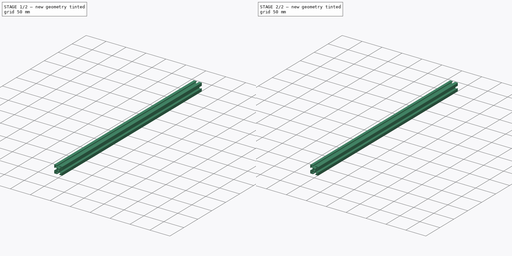
[diagram: build sequence overview — one tinted view per stage of 2, left to right]
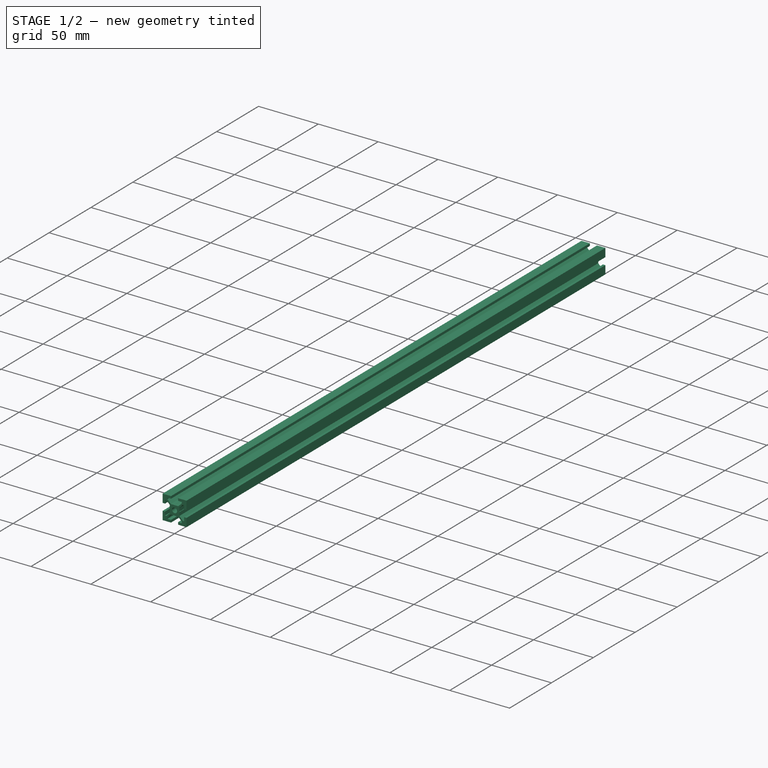
[diagram: stage 1 of 2 — iso view after this stage's code; geometry added in this stage tinted green]
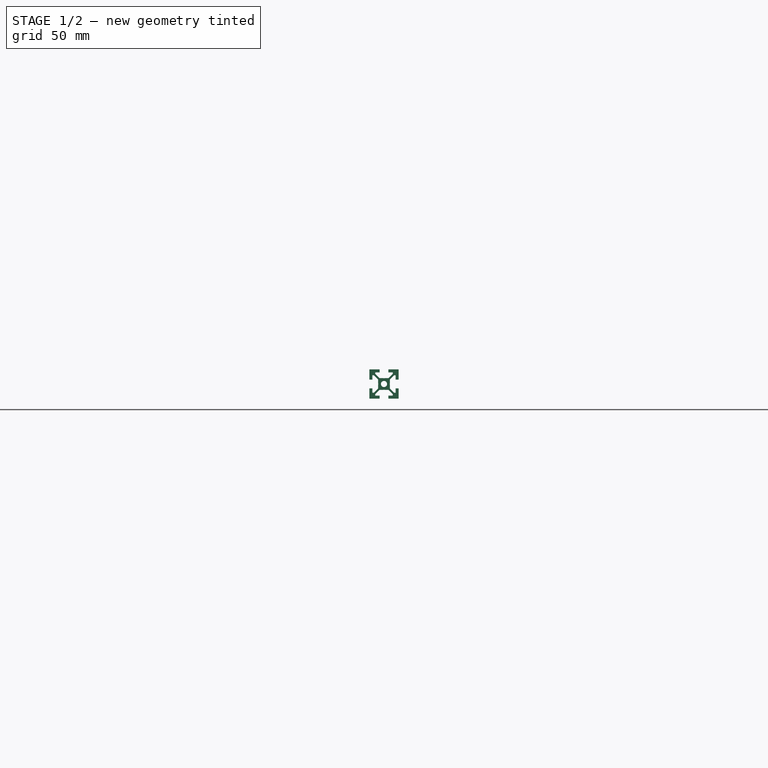
[diagram: stage 1 of 2 — front view after this stage's code; geometry added in this stage tinted green]
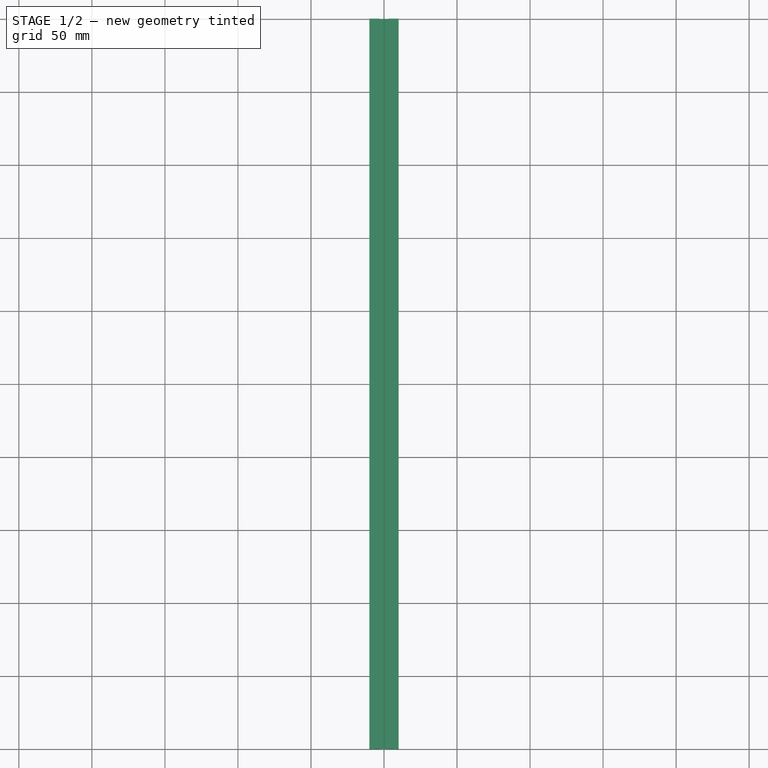
[diagram: stage 1 of 2 — top view after this stage's code; geometry added in this stage tinted green]
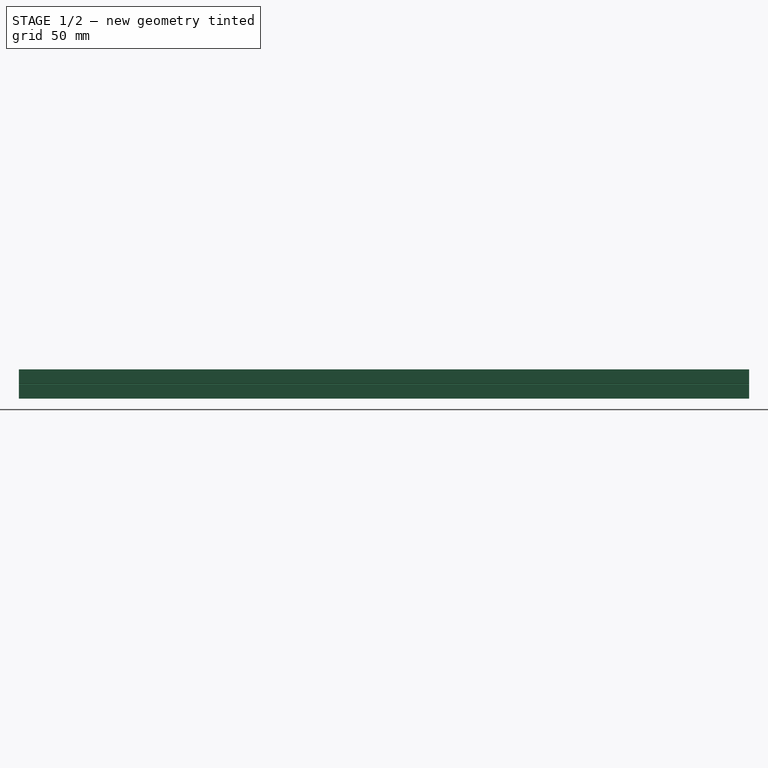
[diagram: stage 1 of 2 — right view after this stage's code; geometry added in this stage tinted green]
FCSTD DOCUMENT  (FreeCAD 0.21R33668 +7 (Git))
Label: 2020 Extrusion
License: All rights reserved
LicenseURL: http://en.wikipedia.org/wiki/All_rights_reserved
objects: Sketcher::SketchObject×1, PartDesign::Pad×1, PartDesign::Fillet×1, PartDesign::Body×1
note: 6 computed .brp shape members not serialized (recipe doc carries the construction recipe); baked Part::Feature solids carry a one-line shape summary decoded from their .brp

FEATURE [Sketcher::SketchObject] Sketch
  FullyConstrained = true
  MapMode = 5
  Placement = pos=(0,0,0) rot=(1,0,0;1.5708rad)
  Support = -> [XZ_Plane]
  sketch-geometry (57):
    g0: LineSegment StartX=-10 StartY=10 StartZ=0 EndX=-3 EndY=10 EndZ=0
    g1: LineSegment StartX=10 StartY=10 StartZ=0 EndX=10 EndY=3 EndZ=0
    g2: LineSegment StartX=10 StartY=-10 StartZ=0 EndX=3 EndY=-10 EndZ=0
    g3: LineSegment StartX=-10 StartY=-10 StartZ=0 EndX=-10 EndY=-3 EndZ=0
    g4: LineSegment StartX=-3 StartY=10 StartZ=0 EndX=-3 EndY=8 EndZ=0
    g5: LineSegment StartX=-3 StartY=8 StartZ=0 EndX=-6 EndY=8 EndZ=0
    g6: LineSegment StartX=-6 StartY=8 StartZ=0 EndX=-6 EndY=6.88388 EndZ=0
    g7: LineSegment StartX=-6 StartY=6.88388 StartZ=0 EndX=-3.11612 EndY=4 EndZ=0
    g8: LineSegment StartX=-3.11612 StartY=4 StartZ=0 EndX=-0.25 EndY=4 EndZ=0
    g9: LineSegment StartX=-0.25 StartY=4 StartZ=0 EndX=0 EndY=3.75 EndZ=0
    g10: LineSegment StartX=0 StartY=3.75 StartZ=0 EndX=0.25 EndY=4 EndZ=0
    g11: LineSegment StartX=0.25 StartY=4 StartZ=0 EndX=3.11612 EndY=4 EndZ=0
    g12: LineSegment StartX=3.11612 StartY=4 StartZ=0 EndX=6 EndY=6.88388 EndZ=0
    g13: LineSegment StartX=6 StartY=6.88388 StartZ=0 EndX=6 EndY=8 EndZ=0
    g14: LineSegment StartX=6 StartY=8 StartZ=0 EndX=3 EndY=8 EndZ=0
    g15: LineSegment StartX=3 StartY=8 StartZ=0 EndX=3 EndY=10 EndZ=0
    g16: LineSegment StartX=-10 StartY=3 StartZ=0 EndX=-8 EndY=3 EndZ=0
    g17: LineSegment StartX=-8 StartY=3 StartZ=0 EndX=-8 EndY=6 EndZ=0
    g18: LineSegment StartX=-8 StartY=6 StartZ=0 EndX=-6.88388 EndY=6 EndZ=0
    g19: LineSegment StartX=-6.88388 StartY=6 StartZ=0 EndX=-4 EndY=3.11612 EndZ=0
    g20: LineSegment StartX=-4 StartY=3.11612 StartZ=0 EndX=-4 EndY=0.25 EndZ=0
    g21: LineSegment StartX=-4 StartY=-0.25 StartZ=0 EndX=-4 EndY=-3.11612 EndZ=0
    g22: LineSegment StartX=-4 StartY=-3.11612 StartZ=0 EndX=-6.88388 EndY=-6 EndZ=0
    g23: LineSegment StartX=-6.88388 StartY=-6 StartZ=0 EndX=-8 EndY=-6 EndZ=0
    g24: LineSegment StartX=-8 StartY=-6 StartZ=0 EndX=-8 EndY=-3 EndZ=0
    g25: LineSegment StartX=-8 StartY=-3 StartZ=0 EndX=-10 EndY=-3 EndZ=0
    g26: LineSegment StartX=-3 StartY=-10 StartZ=0 EndX=-3 EndY=-8 EndZ=0
    g27: LineSegment StartX=-3 StartY=-8 StartZ=0 EndX=-6 EndY=-8 EndZ=0
    g28: LineSegment StartX=-6 StartY=-8 StartZ=0 EndX=-6 EndY=-6.88388 EndZ=0
    g29: LineSegment StartX=-6 StartY=-6.88388 StartZ=0 EndX=-3.11612 EndY=-4 EndZ=0
    g30: LineSegment StartX=-3.11612 StartY=-4 StartZ=0 EndX=-0.25 EndY=-4 EndZ=0
    g31: LineSegment StartX=-0.25 StartY=-4 StartZ=0 EndX=0 EndY=-3.75 EndZ=0
    g32: LineSegment StartX=0 StartY=-3.75 StartZ=0 EndX=0.25 EndY=-4 EndZ=0
    g33: LineSegment StartX=0.25 StartY=-4 StartZ=0 EndX=3.11612 EndY=-4 EndZ=0
    g34: LineSegment StartX=3.11612 StartY=-4 StartZ=0 EndX=6 EndY=-6.88388 EndZ=0
    g35: LineSegment StartX=6 StartY=-6.88388 StartZ=0 EndX=6 EndY=-8 EndZ=0
    g36: LineSegment StartX=6 StartY=-8 StartZ=0 EndX=3 EndY=-8 EndZ=0
    g37: LineSegment StartX=3 StartY=-8 StartZ=0 EndX=3 EndY=-10 EndZ=0
    g38: LineSegment StartX=10 StartY=-3 StartZ=0 EndX=8 EndY=-3 EndZ=0
    g39: LineSegment StartX=8 StartY=-3 StartZ=0 EndX=8 EndY=-6 EndZ=0
    g40: LineSegment StartX=8 StartY=-6 StartZ=0 EndX=6.88388 EndY=-6 EndZ=0
    g41: LineSegment StartX=6.88388 StartY=-6 StartZ=0 EndX=4 EndY=-3.11612 EndZ=0
    g42: LineSegment StartX=4 StartY=-3.11612 StartZ=0 EndX=4 EndY=-0.25 EndZ=0
    g43: LineSegment StartX=4 StartY=0.25 StartZ=0 EndX=4 EndY=3.11612 EndZ=0
    g44: LineSegment StartX=4 StartY=3.11612 StartZ=0 EndX=6.88388 EndY=6 EndZ=0
    g45: LineSegment StartX=6.88388 StartY=6 StartZ=0 EndX=8 EndY=6 EndZ=0
    g46: LineSegment StartX=8 StartY=6 StartZ=0 EndX=8 EndY=3 EndZ=0
    g47: LineSegment StartX=8 StartY=3 StartZ=0 EndX=10 EndY=3 EndZ=0
    g48: LineSegment StartX=10 StartY=-3 StartZ=0 EndX=10 EndY=-10 EndZ=0
    g49: LineSegment StartX=-10 StartY=3 StartZ=0 EndX=-10 EndY=10 EndZ=0
    g50: LineSegment StartX=3 StartY=10 StartZ=0 EndX=10 EndY=10 EndZ=0
    g51: LineSegment StartX=-3 StartY=-10 StartZ=0 EndX=-10 EndY=-10 EndZ=0
    g52: LineSegment StartX=-4 StartY=0.25 StartZ=0 EndX=-3.75 EndY=0 EndZ=0
    g53: LineSegment StartX=-3.75 StartY=0 StartZ=0 EndX=-4 EndY=-0.25 EndZ=0
    g54: LineSegment StartX=4 StartY=0.25 StartZ=0 EndX=3.75 EndY=0 EndZ=0
    g55: LineSegment StartX=3.75 StartY=0 StartZ=0 EndX=4 EndY=-0.25 EndZ=0
    g56: Circle CenterX=0 CenterY=0 CenterZ=0 NormalX=0 NormalY=0 NormalZ=1 AngleXU=0 Radius=2.1
  constraints (165):
    c: Coincident(g50,g1)
    c: Coincident(g48,g2)
    c: Coincident(g51,g3)
    c: Coincident(g49,g0)
    c: Horizontal(g0)
    c: Horizontal(g2)
    c: Vertical(g1)
    c: Vertical(g3)
    c: Symmetric(g0,g48,g-1)
    c: Vertical(g4)
    c: Coincident(g4,g5)
    c: Horizontal(g5)
    c: Coincident(g5,g6)
    c: Vertical(g6)
    c: Coincident(g6,g7)
    c: Coincident(g7,g8)
    c: Horizontal(g8)
    c: Coincident(g8,g9)
    c: Coincident(g9,g10)
    c: Coincident(g10,g11)
    c: Horizontal(g11)
    c: Coincident(g11,g12)
    c: Coincident(g12,g13)
    c: Vertical(g13)
    c: Coincident(g13,g14)
    c: Horizontal(g14)
    c: Coincident(g14,g15)
    c: Vertical(g15)
    c: Horizontal(g16)
    c: Coincident(g16,g17)
    c: Vertical(g17)
    c: Coincident(g17,g18)
    c: Coincident(g18,g19)
    c: Coincident(g19,g20)
    c: Vertical(g20)
    c: Vertical(g21)
    c: Coincident(g21,g22)
    c: Coincident(g22,g23)
    c: Coincident(g23,g24)
    c: Vertical(g24)
    c: Coincident(g24,g25)
    c: Horizontal(g25)
    c: Vertical(g26)
    c: Coincident(g26,g27)
    c: Horizontal(g27)
    c: Coincident(g27,g28)
    c: Coincident(g28,g29)
    c: Coincident(g29,g30)
    c: Horizontal(g30)
    c: Coincident(g30,g31)
    c: PointOnObject(g31,g-2)
    c: Coincident(g31,g32)
    c: Coincident(g32,g33)
    c: Horizontal(g33)
    c: Coincident(g33,g34)
    c: Coincident(g34,g35)
    c: Coincident(g35,g36)
    c: Horizontal(g36)
    c: Coincident(g36,g37)
    c: Vertical(g37)
    c: Horizontal(g38)
    c: Coincident(g38,g39)
    c: Vertical(g39)
    c: Coincident(g39,g40)
    c: Coincident(g40,g41)
    c: Coincident(g41,g42)
    c: Vertical(g42)
    c: Vertical(g43)
    c: Coincident(g43,g44)
    c: Coincident(g44,g45)
    c: Horizontal(g45)
    c: Coincident(g45,g46)
    c: Vertical(g46)
    c: Coincident(g46,g47)
    c: Horizontal(g47)
    c: Coincident(g1,g47)
    c: Coincident(g48,g38)
    c: Tangent(g1,g48)
    c: Coincident(g3,g25)
    c: Coincident(g49,g16)
    c: Tangent(g3,g49)
    c: Coincident(g0,g4)
    c: Coincident(g50,g15)
    c: Tangent(g0,g50)
    c: Coincident(g2,g37)
    c: Coincident(g51,g26)
    c: Tangent(g2,g51)
    c: Equal(g0,g49)
    c: Equal(g49,g3)
    c: Equal(g3,g51)
    c: Equal(g51,g2)
    c: Equal(g2,g48)
    c: Equal(g48,g1)
    c: Equal(g1,g50)
    c: Equal(g4,g15)
    c: Equal(g15,g47)
    c: Equal(g47,g38)
    c: Equal(g38,g37)
    c: Equal(g37,g26)
    c: Equal(g26,g25)
    c: Equal(g25,g16)
    c: Horizontal(g23)
    c: Vertical(g35)
    c: Horizontal(g40)
    c: Horizontal(g18)
    c: Vertical(g28)
    c: Equal(g23,g28)
    c: Equal(g28,g35)
    c: Equal(g35,g40)
    c: Equal(g40,g45)
    c: Equal(g45,g13)
    c: Equal(g13,g6)
    c: Equal(g6,g18)
    c: Equal(g17,g5)
    c: Equal(g5,g14)
    c: Equal(g14,g46)
    c: Equal(g46,g39)
    c: Equal(g39,g36)
    c: Equal(g36,g27)
    c: Equal(g27,g24)
    c: Equal(g30,g33)
    c: Equal(g33,g21)
    c: Equal(g21,g20)
    c: Equal(g20,g8)
    c: Equal(g8,g11)
    c: Equal(g11,g43)
    c: Equal(g43,g42)
    c: PointOnObject(g9,g-2)
    c: Equal(g9,g10)
    c: Equal(g31,g32)
    c: Horizontal(g30,g32)
    c: Vertical(g20,g21)
    c: Horizontal(g8,g10)
    c: Parallel(g19,g7)
    c: Parallel(g44,g12)
    c: Parallel(g22,g29)
    c: Equal(g12,g44)
    c: Equal(g44,g41)
    c: Equal(g41,g34)
    c: Equal(g29,g22)
    c: Perpendicular(g22,g19)
    c: DistanceX(g16,g16) = 2
    c: DistanceX(g0,g1) = 20
    c: DistanceY(g3,g0) = 20
    c: DistanceX(g21,g41) = 8
    c: Coincident(g20,g52)
    c: PointOnObject(g52,g-1)
    c: Coincident(g52,g53)
    c: Coincident(g53,g21)
    c: Coincident(g43,g54)
    c: PointOnObject(g54,g-1)
    c: Coincident(g54,g55)
    c: Coincident(g55,g42)
    c: Vertical(g43,g42)
    c: Equal(g52,g53)
    c: Equal(g53,g54)
    c: Equal(g55,g32)
    c: DistanceX(g26,g2) = 6
    c: DistanceY(g23,g17) = 12
    c: Parallel(g9,g7)
    c: DistanceX(g8,g10) = 0.5
    c: Parallel(g54,g44)
    c: Coincident(g56,g-1)
    c: Diameter(g56) = 4.2
    c: Distance(g18,g6) = 1.25
FEATURE [PartDesign::Pad] Pad
  Direction = (0,-1,-2e-16)
  Length = 500
  Length2 = 100
  Midplane = true
  Placement = pos=(0,0,0) rot=(1,0,0;1.5708rad)
  Profile = -> Sketch
  ReferenceAxis = -> Sketch [N_Axis]
  Type = 0
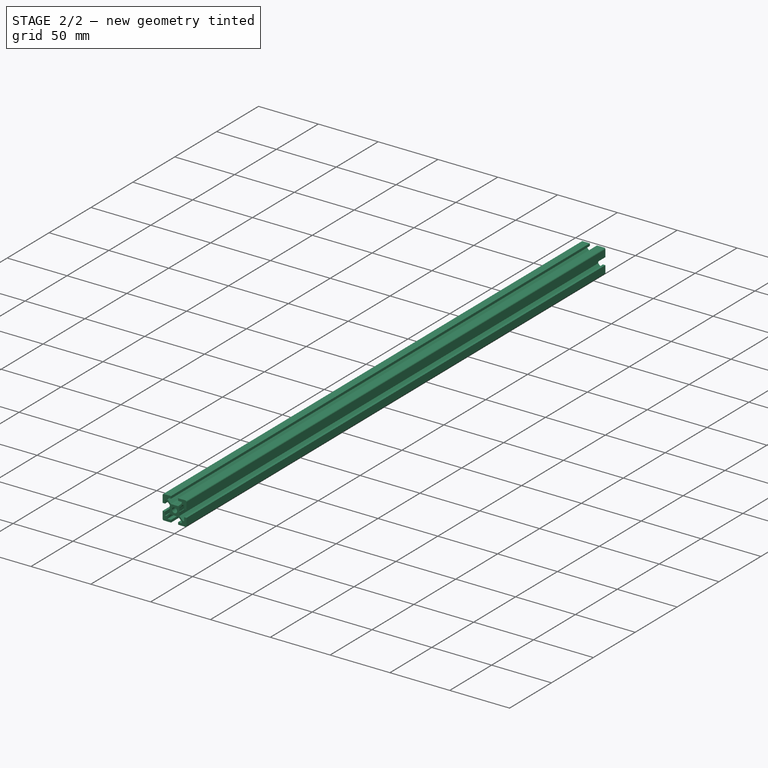
[diagram: stage 2 of 2 — iso view after this stage's code; geometry added in this stage tinted green]
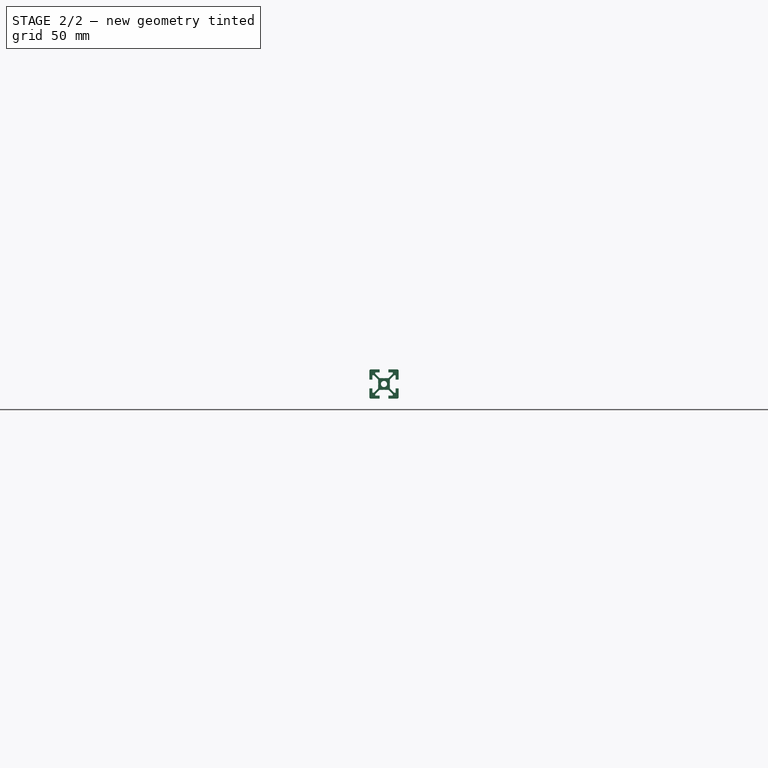
[diagram: stage 2 of 2 — front view after this stage's code; geometry added in this stage tinted green]
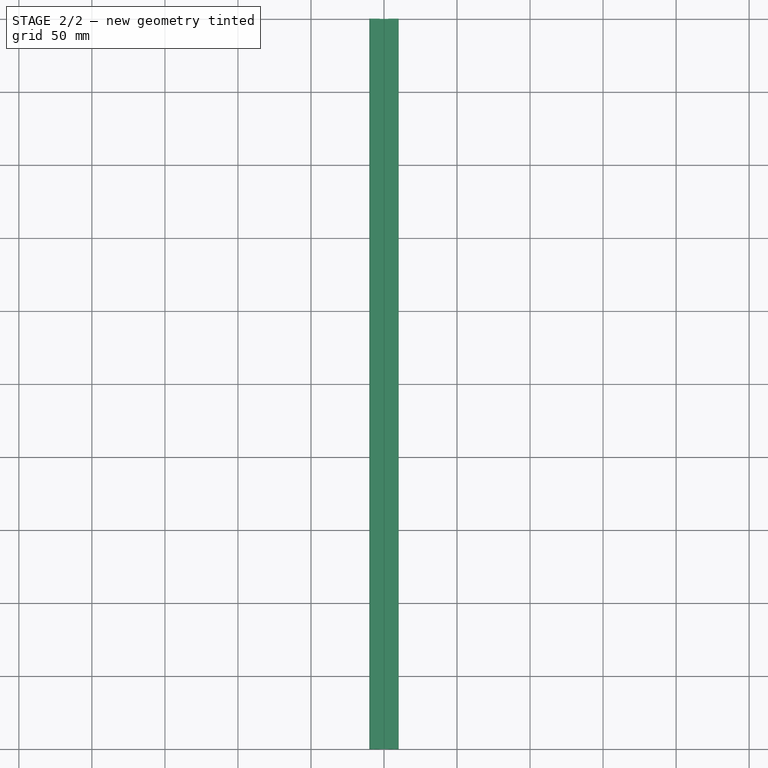
[diagram: stage 2 of 2 — top view after this stage's code; geometry added in this stage tinted green]
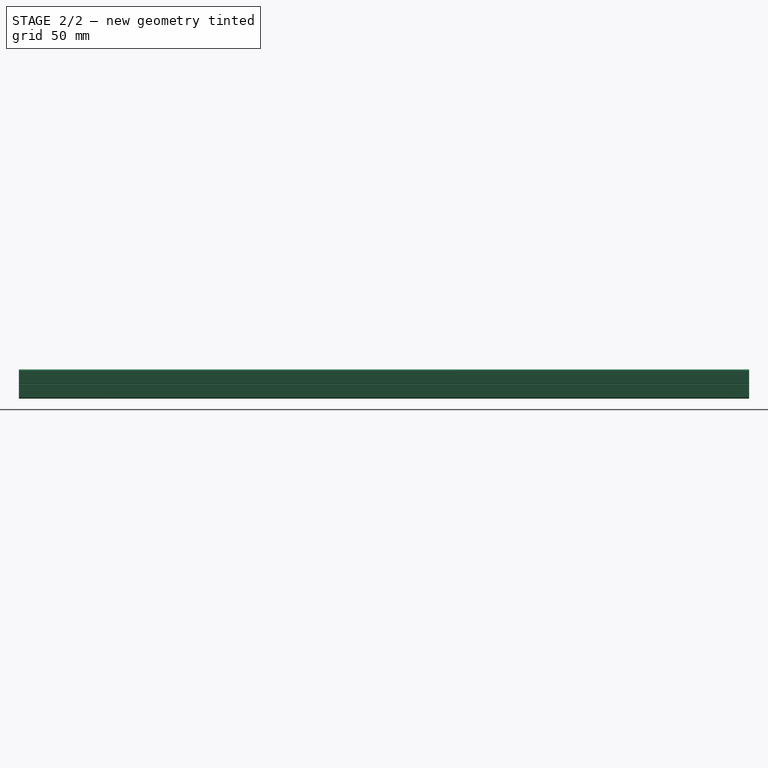
[diagram: stage 2 of 2 — right view after this stage's code; geometry added in this stage tinted green]
FEATURE [PartDesign::Fillet] Fillet
  Base = -> Pad [Edge2,Edge128,Edge44,Edge86]
  BaseFeature = -> Pad
  Placement = pos=(0,0,0) rot=(1,0,0;1.5708rad)
  Radius = 1
  SupportTransform = false
  UseAllEdges = false
FEATURE [PartDesign::Body] Body
  Group = -> [Sketch,Pad,Fillet]
  Origin = -> Origin
  Tip = -> Fillet
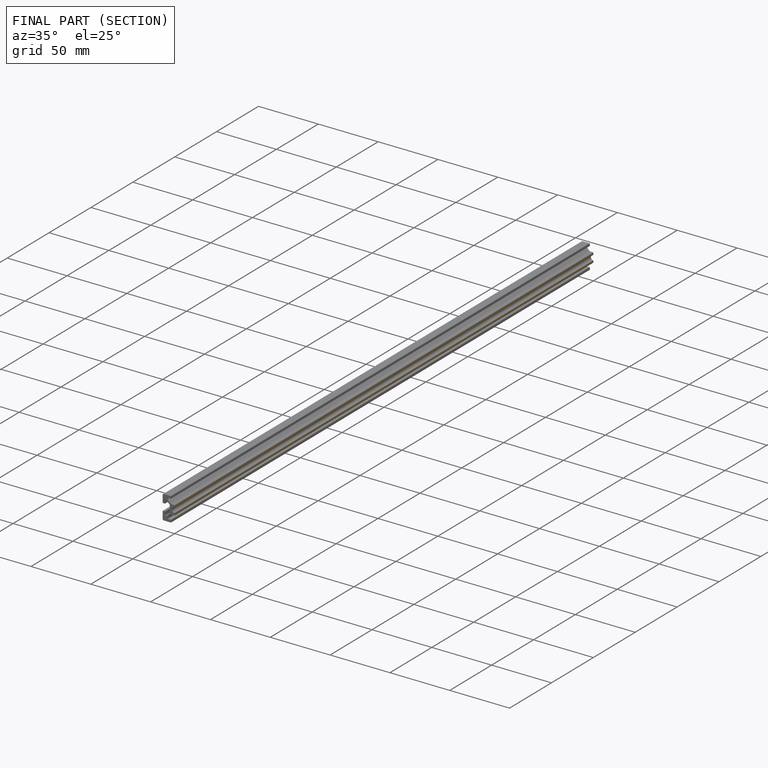
[diagram: finished part — half-section view (interior)]
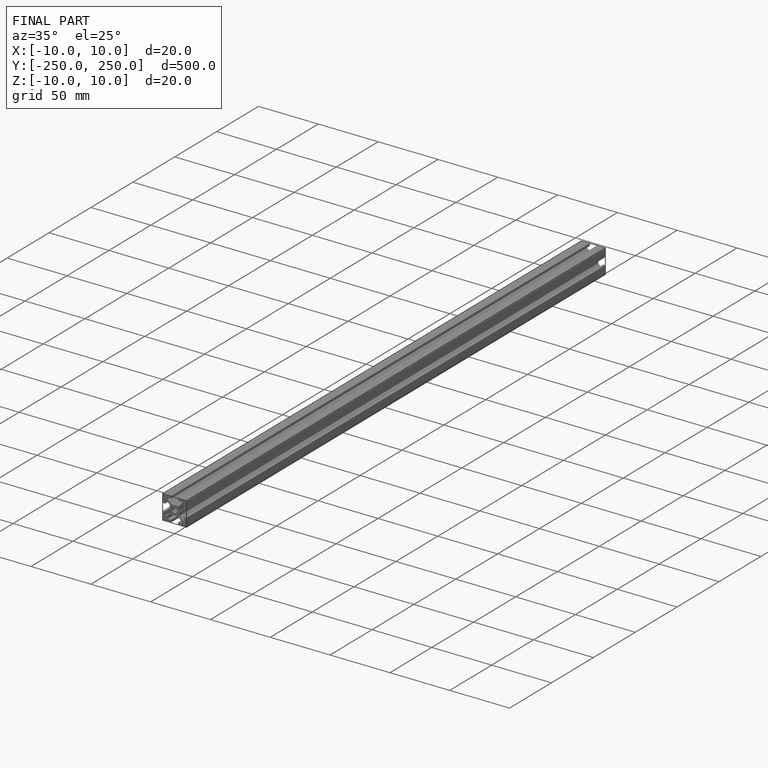
[diagram: finished part — iso view with bounding-box wireframe]
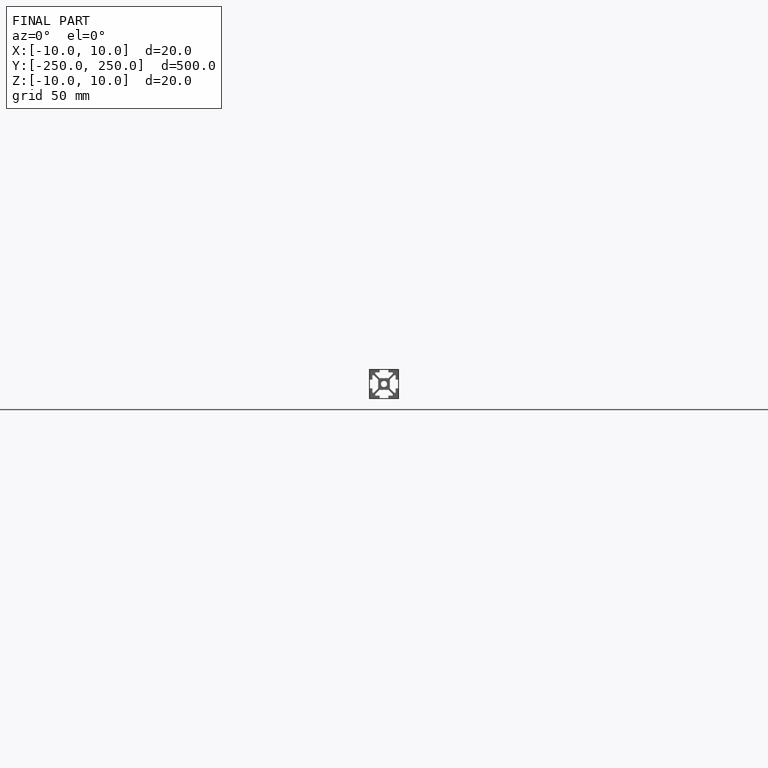
[diagram: finished part — front view with bounding-box wireframe]
